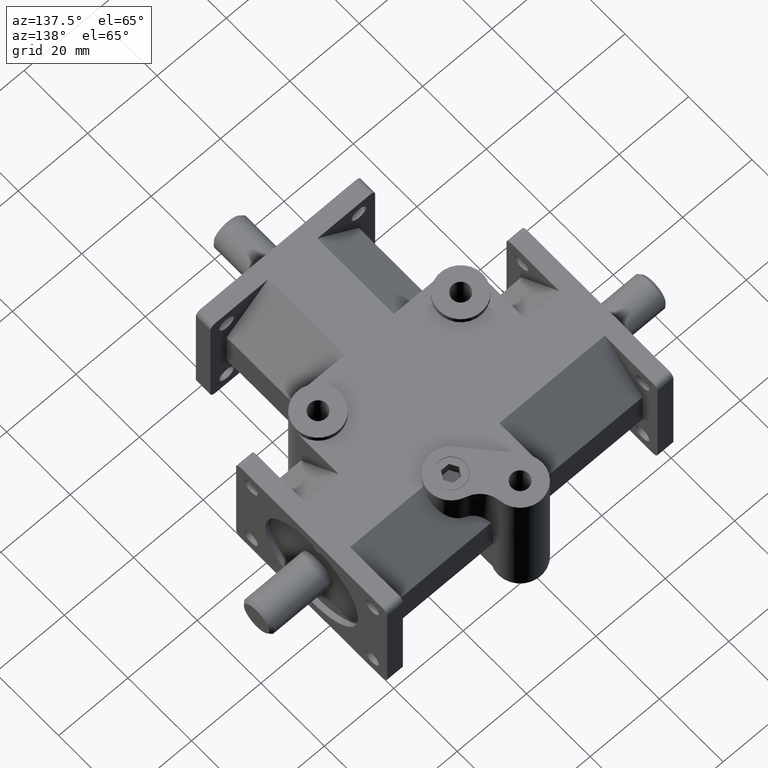
[diagram: clean part render]
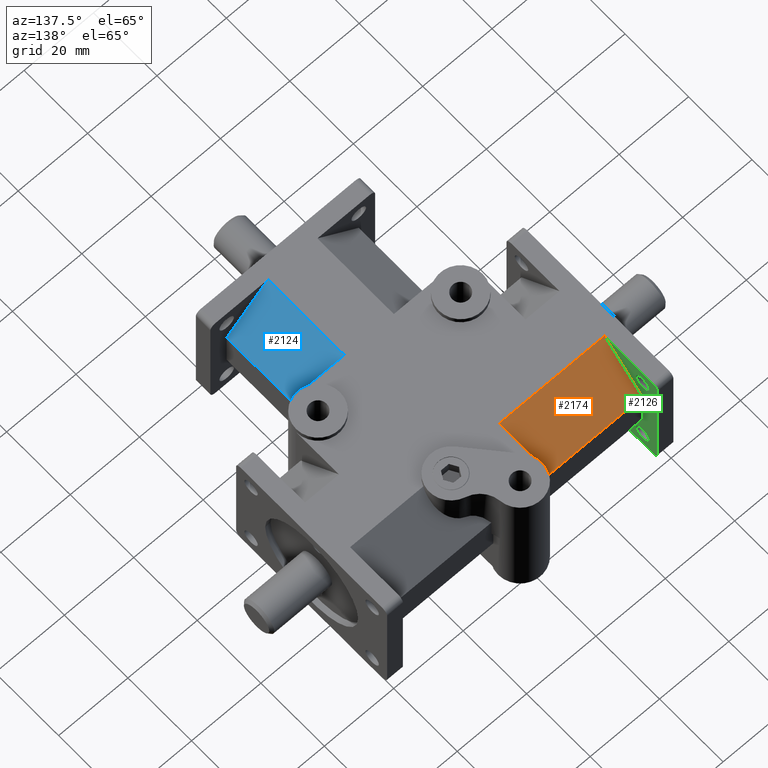
[diagram: same view with three faces highlighted in distinct colors, each labeled with its STEP entity id]
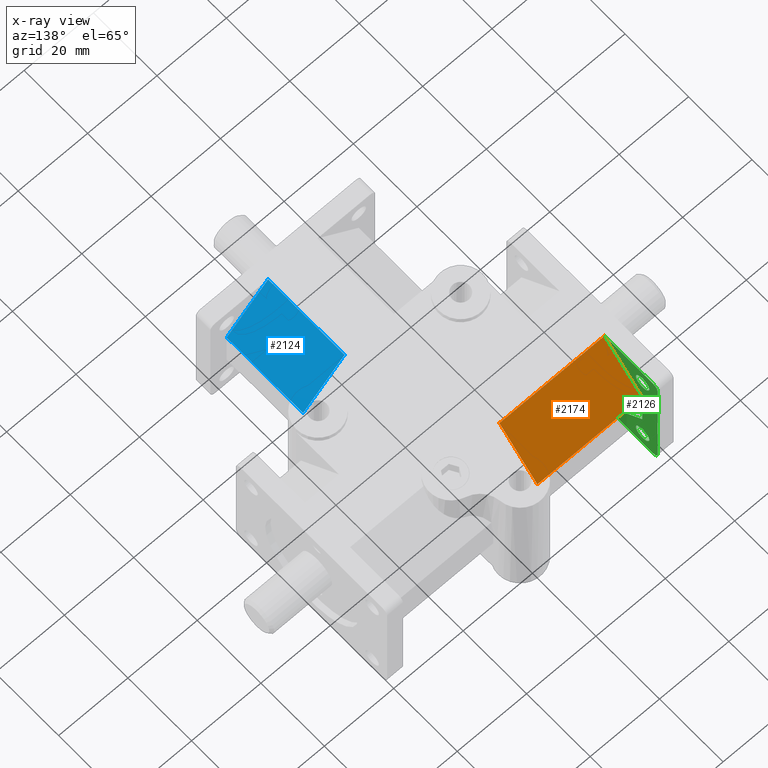
[diagram: x-ray of the same camera — body ghosted, the three highlighted faces saturated]
A machine part, auxiliary view with three faces highlighted in distinct colors.
The next image is the same camera in x-ray (body ghosted, the three faces saturated) — at least one of them is partly hidden behind the body in this view.
Their STEP definitions:

[orange] entity #2174 — the highlighted planar face has unit normal (0, 0.7071, 0.7071).
#125=PLANE('',#2409);
#236=FACE_OUTER_BOUND('',#395,.T.);
#395=EDGE_LOOP('',(#1947,#1948,#1949,#1950));
#587=LINE('',#3352,#782);
#656=LINE('',#3508,#851);
#659=LINE('',#3512,#854);
#707=LINE('',#3669,#902);
#782=VECTOR('',#2691,1.);
#851=VECTOR('',#2824,1.);
#854=VECTOR('',#2829,1.);
#902=VECTOR('',#3027,1.);
#1016=VERTEX_POINT('',#3349);
#1017=VERTEX_POINT('',#3351);
#1071=VERTEX_POINT('',#3505);
#1072=VERTEX_POINT('',#3507);
#1239=EDGE_CURVE('',#1017,#1016,#587,.T.);
#1321=EDGE_CURVE('',#1072,#1071,#656,.T.);
#1324=EDGE_CURVE('',#1071,#1017,#659,.F.);
#1400=EDGE_CURVE('',#1016,#1072,#707,.F.);
#1947=ORIENTED_EDGE('',*,*,#1324,.T.);
#1948=ORIENTED_EDGE('',*,*,#1239,.T.);
#1949=ORIENTED_EDGE('',*,*,#1400,.T.);
#1950=ORIENTED_EDGE('',*,*,#1321,.T.);
#2174=ADVANCED_FACE('',(#236),#125,.T.);
#2409=AXIS2_PLACEMENT_3D('',#3670,#3028,#3029);
#2691=DIRECTION('',(1.,0.,0.));
#2824=DIRECTION('',(-1.,0.,0.));
#2829=DIRECTION('',(0.,0.707106781186548,-0.707106781186547));
#3027=DIRECTION('',(0.,-0.707106781186548,0.707106781186547));
#3028=DIRECTION('center_axis',(0.,0.707106781186547,0.707106781186548));
#3029=DIRECTION('ref_axis',(-1.,0.,0.));
#3349=CARTESIAN_POINT('',(-0.25,2.4675,0.69));
#3351=CARTESIAN_POINT('',(-1.445,2.4675,0.69));
#3352=CARTESIAN_POINT('',(-0.7225,2.4675,0.69));
#3505=CARTESIAN_POINT('',(-1.445,2.9375,0.22));
#3507=CARTESIAN_POINT('',(-0.25,2.9375,0.22));
#3508=CARTESIAN_POINT('',(-0.7225,2.9375,0.22));
#3512=CARTESIAN_POINT('',(-1.445,2.92125,0.23625));
#3669=CARTESIAN_POINT('',(-0.25,2.875,0.2825));
#3670=CARTESIAN_POINT('Origin',(-0.7225,2.7025,0.455));

[blue] entity #2124 — the highlighted planar face has unit normal (0.7071, 0, 0.7071).
#93=PLANE('',#2331);
#186=FACE_OUTER_BOUND('',#327,.T.);
#327=EDGE_LOOP('',(#1701,#1702,#1703,#1704));
#578=LINE('',#3329,#773);
#649=LINE('',#3495,#844);
#652=LINE('',#3499,#847);
#653=LINE('',#3500,#848);
#773=VECTOR('',#2674,1.);
#844=VECTOR('',#2813,1.);
#847=VECTOR('',#2818,1.);
#848=VECTOR('',#2819,1.);
#1006=VERTEX_POINT('',#3326);
#1007=VERTEX_POINT('',#3328);
#1067=VERTEX_POINT('',#3493);
#1068=VERTEX_POINT('',#3494);
#1226=EDGE_CURVE('',#1007,#1006,#578,.T.);
#1314=EDGE_CURVE('',#1067,#1068,#649,.T.);
#1317=EDGE_CURVE('',#1068,#1007,#652,.F.);
#1318=EDGE_CURVE('',#1006,#1067,#653,.F.);
#1701=ORIENTED_EDGE('',*,*,#1317,.T.);
#1702=ORIENTED_EDGE('',*,*,#1226,.T.);
#1703=ORIENTED_EDGE('',*,*,#1318,.T.);
#1704=ORIENTED_EDGE('',*,*,#1314,.T.);
#2124=ADVANCED_FACE('',(#186),#93,.T.);
#2331=AXIS2_PLACEMENT_3D('',#3498,#2816,#2817);
#2674=DIRECTION('',(0.,-1.,0.));
#2813=DIRECTION('',(0.,1.,0.));
#2816=DIRECTION('center_axis',(0.707106781186548,0.,0.707106781186548));
#2817=DIRECTION('ref_axis',(-0.707106781186548,0.,0.707106781186548));
#2818=DIRECTION('',(0.707106781186548,0.,-0.707106781186548));
#2819=DIRECTION('',(-0.707106781186548,0.,0.707106781186548));
#3326=CARTESIAN_POINT('',(0.28,0.18,0.69));
#3328=CARTESIAN_POINT('',(0.28,1.1275,0.69));
#3329=CARTESIAN_POINT('',(0.28,1.40061509118314,0.69));
#3493=CARTESIAN_POINT('',(0.75,0.18,0.22));
#3494=CARTESIAN_POINT('',(0.75,1.1275,0.22));
#3495=CARTESIAN_POINT('',(0.75,1.40061509118314,0.22));
#3498=CARTESIAN_POINT('Origin',(0.515,1.40061509118314,0.455));
#3499=CARTESIAN_POINT('',(0.7025,1.1275,0.2675));
#3500=CARTESIAN_POINT('',(0.6875,0.18,0.2825));

[green] entity #2126 — the highlighted planar face has unit normal (1, 0, 0).
#43=FACE_BOUND('',#330,.T.);
#44=FACE_BOUND('',#331,.T.);
#95=PLANE('',#2333);
#188=FACE_OUTER_BOUND('',#329,.T.);
#329=EDGE_LOOP('',(#1709,#1710,#1711,#1712,#1713,#1714,#1715,#1716));
#330=EDGE_LOOP('',(#1717));
#331=EDGE_LOOP('',(#1718));
#454=CIRCLE('',#2269,0.06);
#456=CIRCLE('',#2272,0.06);
#490=CIRCLE('',#2334,0.083);
#491=CIRCLE('',#2335,0.083);
#588=LINE('',#3353,#783);
#606=LINE('',#3393,#801);
#655=LINE('',#3506,#850);
#658=LINE('',#3511,#853);
#659=LINE('',#3512,#854);
#660=LINE('',#3513,#855);
#783=VECTOR('',#2692,1.);
#801=VECTOR('',#2722,1.);
#850=VECTOR('',#2823,1.);
#853=VECTOR('',#2828,1.);
#854=VECTOR('',#2829,1.);
#855=VECTOR('',#2830,1.);
#968=VERTEX_POINT('',#3232);
#969=VERTEX_POINT('',#3234);
#972=VERTEX_POINT('',#3241);
#973=VERTEX_POINT('',#3243);
#1017=VERTEX_POINT('',#3351);
#1033=VERTEX_POINT('',#3392);
#1069=VERTEX_POINT('',#3502);
#1071=VERTEX_POINT('',#3505);
#1073=VERTEX_POINT('',#3514);
#1074=VERTEX_POINT('',#3516);
#1179=EDGE_CURVE('',#968,#969,#454,.T.);
#1183=EDGE_CURVE('',#972,#973,#456,.T.);
#1240=EDGE_CURVE('',#972,#1017,#588,.T.);
#1262=EDGE_CURVE('',#1033,#969,#606,.T.);
#1320=EDGE_CURVE('',#1069,#1071,#655,.T.);
#1323=EDGE_CURVE('',#968,#973,#658,.T.);
#1324=EDGE_CURVE('',#1071,#1017,#659,.F.);
#1325=EDGE_CURVE('',#1033,#1069,#660,.F.);
#1326=EDGE_CURVE('',#1073,#1073,#490,.T.);
#1327=EDGE_CURVE('',#1074,#1074,#491,.T.);
#1709=ORIENTED_EDGE('',*,*,#1179,.F.);
#1710=ORIENTED_EDGE('',*,*,#1323,.T.);
#1711=ORIENTED_EDGE('',*,*,#1183,.F.);
#1712=ORIENTED_EDGE('',*,*,#1240,.T.);
#1713=ORIENTED_EDGE('',*,*,#1324,.F.);
#1714=ORIENTED_EDGE('',*,*,#1320,.F.);
#1715=ORIENTED_EDGE('',*,*,#1325,.F.);
#1716=ORIENTED_EDGE('',*,*,#1262,.T.);
#1717=ORIENTED_EDGE('',*,*,#1326,.T.);
#1718=ORIENTED_EDGE('',*,*,#1327,.T.);
#2126=ADVANCED_FACE('',(#188,#43,#44),#95,.T.);
#2269=AXIS2_PLACEMENT_3D('',#3235,#2590,#2591);
#2272=AXIS2_PLACEMENT_3D('',#3244,#2598,#2599);
#2333=AXIS2_PLACEMENT_3D('',#3510,#2826,#2827);
#2334=AXIS2_PLACEMENT_3D('',#3515,#2831,#2832);
#2335=AXIS2_PLACEMENT_3D('',#3517,#2833,#2834);
#2590=DIRECTION('center_axis',(-1.,0.,0.));
#2591=DIRECTION('ref_axis',(0.,0.70710678118655,-0.707106781186545));
#2598=DIRECTION('center_axis',(-1.,0.,0.));
#2599=DIRECTION('ref_axis',(0.,0.70710678118655,0.707106781186545));
#2692=DIRECTION('',(0.,-1.,0.));
#2722=DIRECTION('',(0.,1.,0.));
#2823=DIRECTION('',(0.,0.,1.));
#2826=DIRECTION('center_axis',(1.,0.,0.));
#2827=DIRECTION('ref_axis',(0.,-1.,0.));
#2828=DIRECTION('',(0.,0.,1.));
#2829=DIRECTION('',(0.,0.707106781186548,-0.707106781186547));
#2830=DIRECTION('',(0.,-0.707106781186548,-0.707106781186547));
#2831=DIRECTION('center_axis',(-1.,0.,0.));
#2832=DIRECTION('ref_axis',(0.,-1.,0.));
#2833=DIRECTION('center_axis',(-1.,0.,0.));
#2834=DIRECTION('ref_axis',(0.,-1.,0.));
#3232=CARTESIAN_POINT('',(-1.445,3.1225,-0.63));
#3234=CARTESIAN_POINT('',(-1.445,3.0625,-0.69));
#3235=CARTESIAN_POINT('Origin',(-1.445,3.0625,-0.63));
#3241=CARTESIAN_POINT('',(-1.445,3.0625,0.69));
#3243=CARTESIAN_POINT('',(-1.445,3.1225,0.63));
#3244=CARTESIAN_POINT('Origin',(-1.445,3.0625,0.63));
#3351=CARTESIAN_POINT('',(-1.445,2.4675,0.69));
#3353=CARTESIAN_POINT('',(-1.445,2.40561509118314,0.69));
#3392=CARTESIAN_POINT('',(-1.445,2.4675,-0.69));
#3393=CARTESIAN_POINT('',(-1.445,2.9375,-0.69));
#3502=CARTESIAN_POINT('',(-1.445,2.9375,-0.22));
#3505=CARTESIAN_POINT('',(-1.445,2.9375,0.22));
#3506=CARTESIAN_POINT('',(-1.445,2.9375,0.));
#3510=CARTESIAN_POINT('Origin',(-1.445,3.1225,0.));
#3511=CARTESIAN_POINT('',(-1.445,3.1225,0.));
#3512=CARTESIAN_POINT('',(-1.445,2.92125,0.23625));
#3513=CARTESIAN_POINT('',(-1.445,2.92125,-0.23625));
#3514=CARTESIAN_POINT('',(-1.445,3.0205,0.5));
#3515=CARTESIAN_POINT('Origin',(-1.445,2.9375,0.5));
#3516=CARTESIAN_POINT('',(-1.445,3.0205,-0.5));
#3517=CARTESIAN_POINT('Origin',(-1.445,2.9375,-0.5));